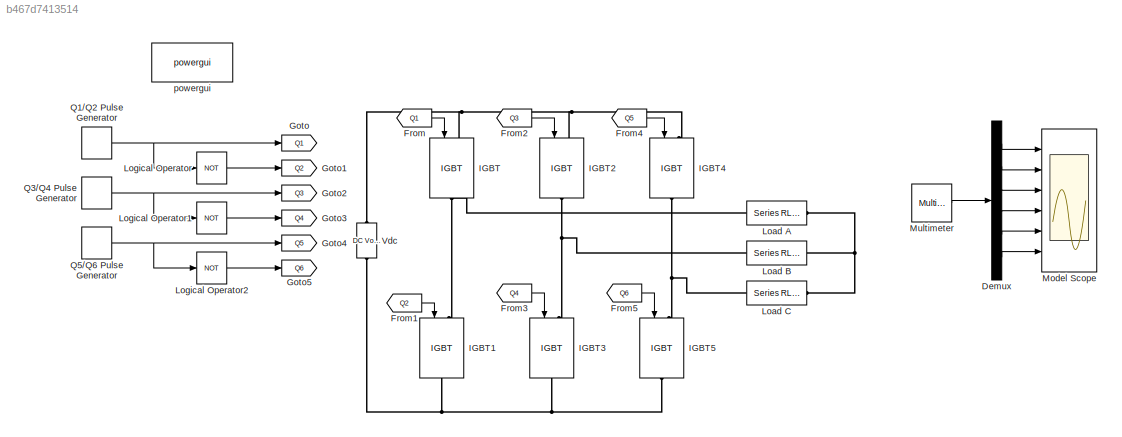
MODEL slx_b467d7413514
KIND model
CONFIG AbsTol = auto
CONFIG EnableMultiTasking = off
CONFIG FixedStep = auto
CONFIG MaxStep = auto
CONFIG MinStep = auto
CONFIG RelTol = 1e-3
CONFIG SampleTimeConstraint = Unconstrained
CONFIG Solver = VariableStepAuto
CONFIG SolverName = VariableStepAuto
CONFIG StartTime = 0.0
CONFIG StopTime = 5/60
BLOCK [Demux] Demux
  Outputs = 6
  Ports = [1, 6]
BLOCK [From] From
  GotoTag = Q1
BLOCK [From] From1
  GotoTag = Q2
BLOCK [From] From2
  GotoTag = Q3
BLOCK [From] From3
  GotoTag = Q4
BLOCK [From] From4
  GotoTag = Q5
BLOCK [From] From5
  GotoTag = Q6
BLOCK [Goto] Goto
  GotoTag = Q1
BLOCK [Goto] Goto1
  GotoTag = Q2
BLOCK [Goto] Goto2
  GotoTag = Q3
BLOCK [Goto] Goto3
  GotoTag = Q4
BLOCK [Goto] Goto4
  GotoTag = Q5
BLOCK [Goto] Goto5
  GotoTag = Q6
BLOCK [Reference] IGBT  REF=powerlib/Power
Electronics/IGBT
  NameLocation = right
  Ports = [1, 0, 0, 0, 0, 1, 1]
  SourceBlock = powerlib/Power\nElectronics/IGBT
  SourceProductBaseCode = PS
  SourceType = IGBT
BLOCK [Reference] IGBT1  REF=powerlib/Power
Electronics/IGBT
  NameLocation = right
  Ports = [1, 0, 0, 0, 0, 1, 1]
  SourceBlock = powerlib/Power\nElectronics/IGBT
  SourceProductBaseCode = PS
  SourceType = IGBT
BLOCK [Reference] IGBT2  REF=powerlib/Power
Electronics/IGBT
  NameLocation = right
  Ports = [1, 0, 0, 0, 0, 1, 1]
  SourceBlock = powerlib/Power\nElectronics/IGBT
  SourceProductBaseCode = PS
  SourceType = IGBT
BLOCK [Reference] IGBT3  REF=powerlib/Power
Electronics/IGBT
  NameLocation = right
  Ports = [1, 0, 0, 0, 0, 1, 1]
  SourceBlock = powerlib/Power\nElectronics/IGBT
  SourceProductBaseCode = PS
  SourceType = IGBT
BLOCK [Reference] IGBT4  REF=powerlib/Power
Electronics/IGBT
  NameLocation = right
  Ports = [1, 0, 0, 0, 0, 1, 1]
  SourceBlock = powerlib/Power\nElectronics/IGBT
  SourceProductBaseCode = PS
  SourceType = IGBT
BLOCK [Reference] IGBT5  REF=powerlib/Power
Electronics/IGBT
  NameLocation = right
  Ports = [1, 0, 0, 0, 0, 1, 1]
  SourceBlock = powerlib/Power\nElectronics/IGBT
  SourceProductBaseCode = PS
  SourceType = IGBT
BLOCK [Reference] Load A  REF=powerlib/Elements/Series RLC Branch
  Ports = [0, 0, 0, 0, 0, 1, 1]
  SourceBlock = powerlib/Elements/Series RLC Branch
  SourceProductBaseCode = PS
  SourceType = Series RLC Branch
BLOCK [Reference] Load B  REF=powerlib/Elements/Series RLC Branch
  Ports = [0, 0, 0, 0, 0, 1, 1]
  SourceBlock = powerlib/Elements/Series RLC Branch
  SourceProductBaseCode = PS
  SourceType = Series RLC Branch
BLOCK [Reference] Load C  REF=powerlib/Elements/Series RLC Branch
  Ports = [0, 0, 0, 0, 0, 1, 1]
  SourceBlock = powerlib/Elements/Series RLC Branch
  SourceProductBaseCode = PS
  SourceType = Series RLC Branch
BLOCK [Logic] Logical Operator
  AllPortsSameDT = off
  Operator = NOT
  OutDataTypeStr = boolean
  Ports = [1, 1]
BLOCK [Logic] Logical Operator1
  AllPortsSameDT = off
  Operator = NOT
  OutDataTypeStr = boolean
  Ports = [1, 1]
BLOCK [Logic] Logical Operator2
  AllPortsSameDT = off
  Operator = NOT
  OutDataTypeStr = boolean
  Ports = [1, 1]
BLOCK [Scope] Model Scope
  Floating = off
  NumInputPorts = 6
  Ports = [6]
  ScopeSpecificationString = Simulink.scopes.TimeScopeBlockCfg('CurrentConfiguration', extmgr.ConfigurationSet(extmgr.Configuration('Core','General UI',true),extmgr.Configuration('Core','Source UI',true),extmgr.Configuration('Sources','WiredSimulink',true),extmgr.Configuration('Visuals','Time Domain',true,'SerializedDisplays',{struct('MinYLimReal','-81.6585','MaxYLimReal','81.6585','YLabelReal','','MinYLimMag','0.00000','MaxY...<+5162ch>
BLOCK [Reference] Multimeter  REF=powerlib/Measurements/Multimeter
  Ports = [0, 1]
  SourceBlock = powerlib/Measurements/Multimeter
  SourceProductBaseCode = PS
  SourceType = MultimeterPSB
BLOCK [DiscretePulseGenerator] Q1//Q2 Pulse Generator
  Period = 1/60
  Ports = [0, 1]
  PulseType = Time based
  PulseWidth = 50
BLOCK [DiscretePulseGenerator] Q3//Q4 Pulse Generator
  Period = 1/60
  PhaseDelay = -240/360*(1/60)
  Ports = [0, 1]
  PulseType = Time based
  PulseWidth = 50
BLOCK [DiscretePulseGenerator] Q5//Q6 Pulse Generator
  Period = 1/60
  PhaseDelay = -(120/360)*(1/60)
  Ports = [0, 1]
  PulseType = Time based
  PulseWidth = 50
BLOCK [Reference] Vdc  REF=powerlib/Electrical
Sources/DC Voltage Source
  NameLocation = right
  Ports = [0, 0, 0, 0, 0, 1, 1]
  SourceBlock = powerlib/Electrical\nSources/DC Voltage Source
  SourceProductBaseCode = PS
  SourceType = DC Voltage Source
BLOCK [Reference] powergui  REF=powerlib/powergui
  Ports = []
  Priority = 1
  SourceBlock = powerlib/powergui
  SourceProductBaseCode = PS
  SourceType = PSB option menu block
LINE Demux:1 -> Model Scope:1
LINE Demux:2 -> Model Scope:2
LINE Demux:3 -> Model Scope:3
LINE Demux:4 -> Model Scope:4
LINE Demux:5 -> Model Scope:5
LINE Demux:6 -> Model Scope:6
LINE From1:1 -> IGBT1:1
LINE From2:1 -> IGBT2:1
LINE From3:1 -> IGBT3:1
LINE From4:1 -> IGBT4:1
LINE From5:1 -> IGBT5:1
LINE From:1 -> IGBT:1
LINE Logical Operator1:1 -> Goto3:1
LINE Logical Operator2:1 -> Goto5:1
LINE Logical Operator:1 -> Goto1:1
LINE Multimeter:1 -> Demux:1
NET Q1//Q2 Pulse Generator:1 -> Goto:1, Logical Operator:1
NET Q3//Q4 Pulse Generator:1 -> Goto2:1, Logical Operator1:1
NET Q5//Q6 Pulse Generator:1 -> Goto4:1, Logical Operator2:1
PNET net1: IGBT1:LConn1 -- IGBT:RConn1 -- Load A:LConn1
PNET net2: IGBT1:RConn1 -- IGBT3:RConn1 -- IGBT5:RConn1 -- Vdc:LConn1
PNET net3: IGBT2:LConn1 -- IGBT4:LConn1 -- IGBT:LConn1 -- Vdc:RConn1
PNET net4: IGBT2:RConn1 -- IGBT3:LConn1 -- Load B:LConn1
PNET net5: IGBT4:RConn1 -- IGBT5:LConn1 -- Load C:LConn1
PNET net6: Load A:RConn1 -- Load B:RConn1 -- Load C:RConn1
note: NET lines group one-source signal fan-out (src -> all destinations, sorted); 1:1 wires keep LINE; PNET lines group multi-terminal physical nets as a canonical sorted terminal list (undirected conserving connections); 2-terminal nets keep the pairwise PLINE form
